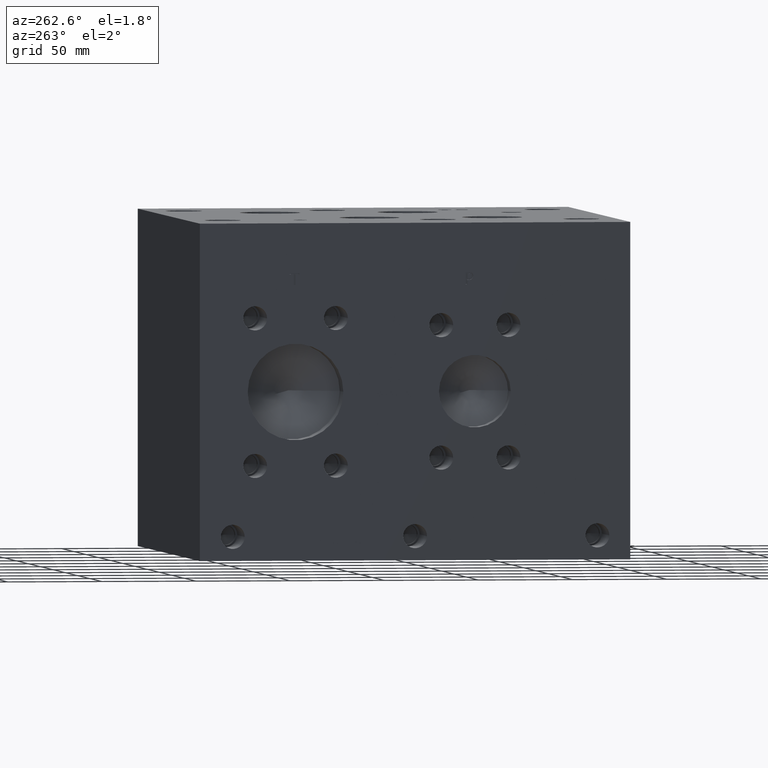
[diagram: clean part render]
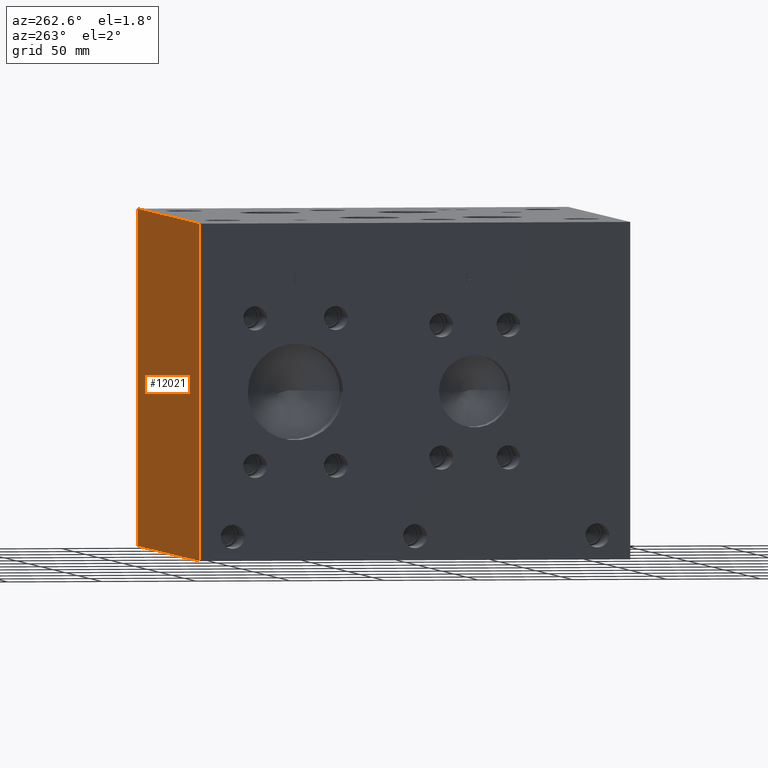
[diagram: same view with one face highlighted and labeled with its STEP entity id]
A machine part, auxiliary view. The second image highlights one B-rep face of the part: STEP entity #12021.
In plain terms, the highlighted planar face has unit normal (0, 1, 0).
Its self-contained STEP definition (entity closure, byte-faithful):
#1602=FACE_OUTER_BOUND('',#2342,.T.);
#2342=EDGE_LOOP('',(#10589,#10590,#10591,#10592));
#3200=LINE('',#19234,#4280);
#3244=LINE('',#19510,#4324);
#3439=LINE('',#20587,#4519);
#3440=LINE('',#20588,#4520);
#4280=VECTOR('',#14343,10.);
#4324=VECTOR('',#14459,10.);
#4519=VECTOR('',#15674,10.);
#4520=VECTOR('',#15675,10.);
#5245=VERTEX_POINT('',#19231);
#5246=VERTEX_POINT('',#19233);
#5313=VERTEX_POINT('',#19506);
#5314=VERTEX_POINT('',#19508);
#6760=EDGE_CURVE('',#5245,#5246,#3200,.T.);
#6846=EDGE_CURVE('',#5313,#5314,#3244,.T.);
#7337=EDGE_CURVE('',#5245,#5313,#3439,.T.);
#7338=EDGE_CURVE('',#5246,#5314,#3440,.T.);
#10589=ORIENTED_EDGE('',*,*,#7337,.T.);
#10590=ORIENTED_EDGE('',*,*,#6846,.T.);
#10591=ORIENTED_EDGE('',*,*,#7338,.F.);
#10592=ORIENTED_EDGE('',*,*,#6760,.F.);
#10992=PLANE('',#12889);
#12021=ADVANCED_FACE('',(#1602),#10992,.T.);
#12889=AXIS2_PLACEMENT_3D('',#20586,#15672,#15673);
#14343=DIRECTION('',(0.,0.,1.));
#14459=DIRECTION('',(0.,0.,1.));
#15672=DIRECTION('center_axis',(0.,1.,0.));
#15673=DIRECTION('ref_axis',(-1.,0.,0.));
#15674=DIRECTION('',(-1.,0.,0.));
#15675=DIRECTION('',(-1.,0.,0.));
#19231=CARTESIAN_POINT('',(254.,228.6,0.));
#19233=CARTESIAN_POINT('',(254.,228.6,177.8));
#19234=CARTESIAN_POINT('',(254.,228.6,0.));
#19506=CARTESIAN_POINT('',(0.,228.6,0.));
#19508=CARTESIAN_POINT('',(0.,228.6,177.8));
#19510=CARTESIAN_POINT('',(0.,228.6,0.));
#20586=CARTESIAN_POINT('Origin',(254.,228.6,0.));
#20587=CARTESIAN_POINT('',(254.,228.6,0.));
#20588=CARTESIAN_POINT('',(254.,228.6,177.8));